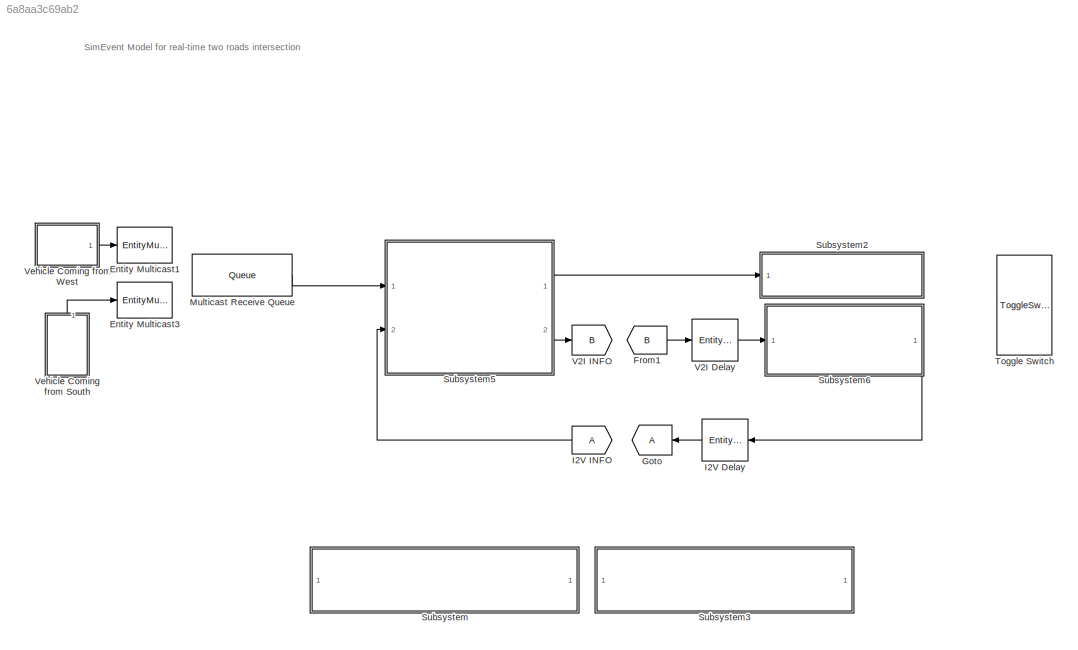
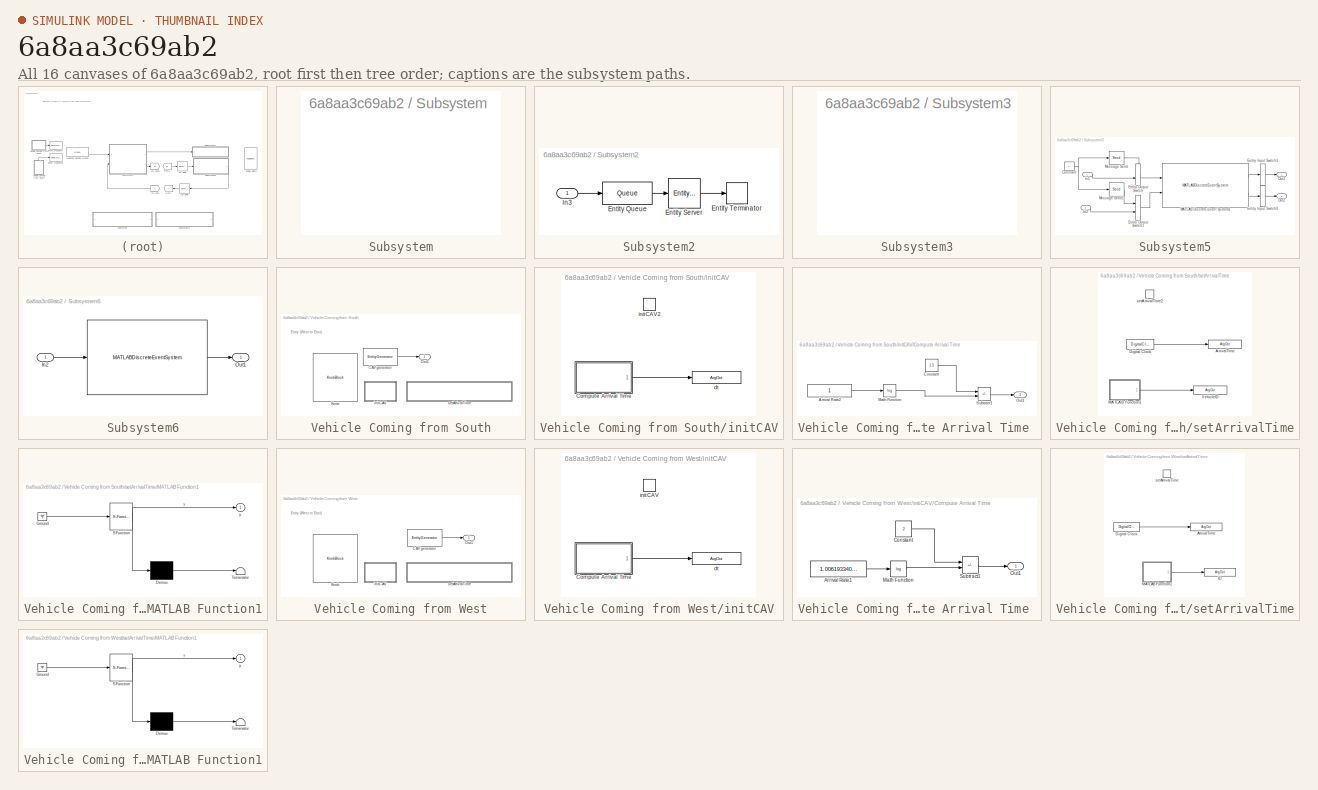
[diagram: thumbnail index - all 16 canvases of the model, root first then tree order]
MODEL slx_6a8aa3c69ab2
KIND model
CONFIG AbsTol = auto
CONFIG EnableMultiTasking = off
CONFIG FixedStep = 0.1
CONFIG MaxStep = auto
CONFIG MinStep = auto
CONFIG PreLoadFcn = init_func
CONFIG RelTol = 1e-3
CONFIG SampleTimeConstraint = Unconstrained
CONFIG SolverName = VariableStepAuto
CONFIG StartTime = 0.0
CONFIG StopTime = 120
BLOCK [EntityMulticast] Entity Multicast1
  InputPortMessageModes = m
  MulticastTag = CAV
BLOCK [EntityMulticast] Entity Multicast3
  InputPortMessageModes = m
  MulticastTag = CAV
BLOCK [From] From1
  GotoTag = B
BLOCK [Goto] Goto
  NameLocation = top
BLOCK [EntityServer] I2V Delay
  Capacity = Inf
  InputPortMap = u2
  InputPortMessageModes = m
  NameLocation = top
  OutputPortMap = o9
  OutputPortMessageModes = m
  Ports = [1, 1]
  ServiceTimeValue = 0
BLOCK [From] I2V INFO
  NameLocation = top
BLOCK [Queue] Multicast Receive Queue
  Capacity = 100
  EntityArrivalSource = Multicast
  MulticastTag = CAV
  OutputPortMap = o5
  OutputPortMessageModes = m
  Ports = [0, 1]
BLOCK [SubSystem] Subsystem
  OpenFcn = edit dynamics.m
  Ports = []
  RequestExecContextInheritance = off
BLOCK [SubSystem] Subsystem2
  Ports = [1]
  RequestExecContextInheritance = off
BLOCK [Queue] Subsystem2/Entity Queue
  InputPortMap = u0
  InputPortMessageModes = m
  OutputPortMap = o5
  OutputPortMessageModes = m
  Ports = [1, 1]
BLOCK [EntityServer] Subsystem2/Entity Server
  Capacity = Inf
  InputPortMap = u2
  InputPortMessageModes = m
  OutputPortMap = o9
  OutputPortMessageModes = m
  Ports = [1, 1]
  ServiceTimeAction = dt = 30 / entity.FinalSpeed;
  ServiceTimeSource = MATLAB action
BLOCK [EntityTerminator] Subsystem2/Entity Terminator
  InputPortMap = u0
  InputPortMessageModes = m
  Ports = [1]
BLOCK [Inport] Subsystem2/In3
BLOCK [SubSystem] Subsystem3
  OpenFcn = edit fuel_consumption.m
  Ports = []
  RequestExecContextInheritance = off
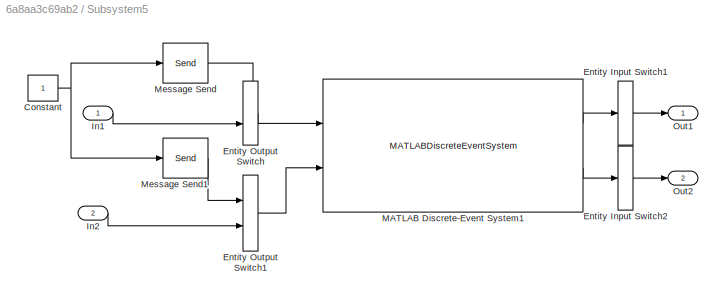
BLOCK [SubSystem] Subsystem5
  Ports = [2, 2]
  RequestExecContextInheritance = off
BLOCK [Constant] Subsystem5/Constant
  SampleTime = -1
BLOCK [EntityInputSwitch] Subsystem5/Entity Input Switch1
  InputPortMap = u1
  InputPortMessageModes = m
  NumberInputPorts = 1
  OutputPortMap = o0
  OutputPortMessageModes = m
  Ports = [1, 1]
  SwitchingCriterion = From control port
BLOCK [EntityInputSwitch] Subsystem5/Entity Input Switch2
  InputPortMap = u1
  InputPortMessageModes = m
  NumberInputPorts = 1
  OutputPortMap = o0
  OutputPortMessageModes = m
  Ports = [1, 1]
  SwitchingCriterion = From control port
BLOCK [EntityOutputSwitch] Subsystem5/Entity Output Switch
  InputPortMap = u0,u1
  InputPortMessageModes = m,m
  NumberOutputPorts = 1
  OutputPortMap = o0
  OutputPortMessageModes = m
  Ports = [2, 1]
  SwitchAttributeName = Attribute1
  SwitchingCriterion = From control port
BLOCK [EntityOutputSwitch] Subsystem5/Entity Output Switch1
  InputPortMap = u0,u1
  InputPortMessageModes = m,m
  NumberOutputPorts = 1
  OutputPortMap = o0
  OutputPortMessageModes = m
  Ports = [2, 1]
  SwitchAttributeName = Attribute1
  SwitchingCriterion = From control port
BLOCK [Inport] Subsystem5/In1
BLOCK [Inport] Subsystem5/In2
  Port = 2
BLOCK [MATLABDiscreteEventSystem] Subsystem5/MATLAB Discrete-Event System1
  Description = Coordinator
  InputPortMessageModes = m,m
  L = 400
  MaskDisplay = disp('OPTIMAL CONTROLLER');\nport_label('input',1,'IN');\nport_label('input',2,'INFO');\nport_label('output',1,'OUT');\nport_label('output',2,'INFO');
  MaskType = Controller
  OutputPortMessageModes = m,m
  Ports = [2, 2]
  SimulateUsing = Interpreted execution
  System = Controller
  capacity = 100
  step = 0.1
BLOCK [Send] Subsystem5/Message Send
  InputPortMap = u1
  OutputPortMessageModes = m
  Ports = [1, 1]
BLOCK [Send] Subsystem5/Message Send1
  InputPortMap = u1
  OutputPortMessageModes = m
  Ports = [1, 1]
BLOCK [Outport] Subsystem5/Out1
BLOCK [Outport] Subsystem5/Out2
  Port = 2
BLOCK [SubSystem] Subsystem6
  Ports = [1, 1]
  RequestExecContextInheritance = off
BLOCK [MATLABDiscreteEventSystem] Subsystem6/ 
  InputPortMessageModes = m
  MaskDisplay = disp('COORDINATOR');\nport_label('input',1,'IN');\nport_label('output',1,'OUT');
  MaskType = Coordinator
  OutputPortMessageModes = m
  Ports = [1, 1]
  SimulateUsing = Interpreted execution
  System = Coordinator
  capacity = 100
BLOCK [Inport] Subsystem6/In2
BLOCK [Outport] Subsystem6/Out1
BLOCK [ToggleSwitchBlock] Toggle Switch
  LabelPosition = Hide
BLOCK [EntityServer] V2I Delay
  Capacity = Inf
  InputPortMap = u2
  InputPortMessageModes = m
  OutputPortMap = o9
  OutputPortMessageModes = m
  Ports = [1, 1]
  ServiceTimeValue = 0.1
BLOCK [Goto] V2I INFO
  GotoTag = B
BLOCK [SubSystem] Vehicle Coming from South
  NameLocation = right
  Ports = [0, 1]
  RequestExecContextInheritance = off
BLOCK [EntityGenerator] Vehicle Coming from South/CAV generator 
  AttributeInitialValue = 0|1|1|1|1|1|1|1|[0 0 0 0]
  AttributeName = ID|Speed|ArrivalTime|FinalSpeed|FinalTime|Position|Destination|Lane|coe
  DialogController = slde.AttributeBlockDialog
  EntityType = Bus object
  EntityTypeName = CAV
  GenerateAction = entity.FinalSpeed = 30;\nentity.distance = 0;\n[entity.ArrivalTime,...\n    entity.ID] = setArrivalTime2();\n%entity.Speed = 9 + 3 * rand();\nentity.Speed = 20;\nentity.TravelTime = 0;\nentity.FuelConsumption = 0;\nentity.Lane = 2;\nentity.Position = 0;\nentity.coe = [0, 0, entity.Speed, ...\n    -entity.Speed * entity.ArrivalTime];\ndest = [1, 3, 4];\nidx = ceil(3 * rand()); \nentity.Destination = 3;%dest(idx)...<+46ch>
  GenerateEntityAtSimulationStart = off
  IntergenerationTimeAction = % dt = 2 * rand();\n% dt = initCAV2();\nmean = 2.7;\ndt = 2.8-mean*log(1-rand());\n%dt = 2.8;
  OutputPortMap = o3
  OutputPortMessageModes = m
  Ports = [0, 1]
  TimeSource = MATLAB action
BLOCK [KnobBlock] Vehicle Coming from South/Knob
  ScaleMax = 1
BLOCK [Outport] Vehicle Coming from South/Out1
BLOCK [SubSystem] Vehicle Coming from South/initCAV
  Ports = [0, 0, 0, 1]
  RequestExecContextInheritance = off
  TreatAsAtomicUnit = on
BLOCK [SubSystem] Vehicle Coming from South/initCAV/Compute Arrival Time 
  Ports = [0, 1]
  RequestExecContextInheritance = off
BLOCK [Constant] Vehicle Coming from South/initCAV/Compute Arrival Time /Arrival Rate2 
  SampleTime = -1
BLOCK [Constant] Vehicle Coming from South/initCAV/Compute Arrival Time /Constant
  SampleTime = Inf
  Value = 1.5
BLOCK [Math] Vehicle Coming from South/initCAV/Compute Arrival Time /Math Function
  Operator = log
  Ports = [1, 1]
  SignedPower = on
BLOCK [Outport] Vehicle Coming from South/initCAV/Compute Arrival Time /Out1
BLOCK [Sum] Vehicle Coming from South/initCAV/Compute Arrival Time /Subtract1
  IconShape = rectangular
  Inputs = +-
  Ports = [2, 1]
BLOCK [ArgOut] Vehicle Coming from South/initCAV/dt
  ArgumentName = dt
  DisableCoverage = on
BLOCK [TriggerPort] Vehicle Coming from South/initCAV/initCAV2
  FunctionName = initCAV2
  FunctionVisibility = scoped
  IsSimulinkFunction = on
  Ports = []
  StatesWhenEnabling = held
  TriggerType = function-call
  VariantControl = Variant
BLOCK [SubSystem] Vehicle Coming from South/setArrivalTime
  Ports = [0, 0, 0, 1]
  RequestExecContextInheritance = off
  TreatAsAtomicUnit = on
BLOCK [ArgOut] Vehicle Coming from South/setArrivalTime/ArrivalTime
  ArgumentName = ArrivalTime
  DisableCoverage = on
BLOCK [DigitalClock] Vehicle Coming from South/setArrivalTime/Digital Clock
  SampleTime = -1
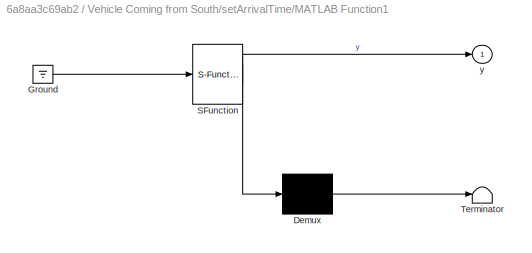
BLOCK [SubSystem] Vehicle Coming from South/setArrivalTime/MATLAB Function1
  ErrorFcn = Stateflow.Translate.translate
  PermitHierarchicalResolution = ExplicitOnly
  Ports = [0, 1]
  RequestExecContextInheritance = off
  SFBlockType = MATLAB Function
  TreatAsAtomicUnit = on
BLOCK [Demux] Vehicle Coming from South/setArrivalTime/MATLAB Function1/ Demux 
  Outputs = 1
  Ports = [1, 1]
BLOCK [Ground] Vehicle Coming from South/setArrivalTime/MATLAB Function1/ Ground 
BLOCK [S-Function] Vehicle Coming from South/setArrivalTime/MATLAB Function1/ SFunction 
  EnableBusSupport = on
  FunctionName = sf_sfun
  PortCounts = [1 2]
  Ports = [1, 2]
  SFcnIsStateOwnerBlock = off
  SFunctionDeploymentMode = off
  Tag = Stateflow S-Function 1
BLOCK [Terminator] Vehicle Coming from South/setArrivalTime/MATLAB Function1/ Terminator 
BLOCK [Outport] Vehicle Coming from South/setArrivalTime/MATLAB Function1/y
BLOCK [ArgOut] Vehicle Coming from South/setArrivalTime/VehicleID
  ArgumentName = VehicleID
  DisableCoverage = on
  Port = 2
BLOCK [TriggerPort] Vehicle Coming from South/setArrivalTime/setArrivalTime2
  FunctionName = setArrivalTime2
  FunctionVisibility = scoped
  IsSimulinkFunction = on
  Ports = []
  StatesWhenEnabling = held
  TriggerType = function-call
  VariantControl = Variant
BLOCK [SubSystem] Vehicle Coming from West
  Ports = [0, 1]
  RequestExecContextInheritance = off
BLOCK [EntityGenerator] Vehicle Coming from West/CAV generator 
  AttributeInitialValue = 0|1|1|1|1|0|1|1|1|[0 0 0 0]
  AttributeName = ID|Speed|ArrivalTime|FinalSpeed|FinalTime|Position|Lane|Destination|Acceleration|coe
  DialogController = slde.AttributeBlockDialog
  EntityType = Bus object
  EntityTypeName = CAV
  GenerateAction = entity.FinalSpeed = 30;\nentity.distance = 0;\n[entity.ArrivalTime,...\n    entity.ID] = setArrivalTime();\n%entity.Speed = 8 + 4 * rand();\nentity.Speed = 20;\nentity.Lane = 1;\nentity.Position = 0;\nentity.TravelTime = 0;\nentity.FuelConsumption = 0;\nentity.coe = [0, 0, entity.Speed,...\n    - entity.Speed * entity.ArrivalTime];\ndest = [2, 3, 4];\nidx = ceil(3 * rand()); \nentity.Destination = 3;%dest(idx);...<+45ch>
  IntergenerationTimeAction = %dt = initCAV();\nmean = 0.8;\ndt = 1.8 - mean*log(1-rand());\n%dt = 2.8;
  OutputPortMap = o3
  OutputPortMessageModes = m
  Ports = [0, 1]
  TimeSource = MATLAB action
BLOCK [KnobBlock] Vehicle Coming from West/Knob
  ScaleMax = 3
BLOCK [Outport] Vehicle Coming from West/Out1
BLOCK [SubSystem] Vehicle Coming from West/initCAV
  Ports = [0, 0, 0, 1]
  RequestExecContextInheritance = off
  TreatAsAtomicUnit = on
BLOCK [SubSystem] Vehicle Coming from West/initCAV/Compute Arrival Time 
  Ports = [0, 1]
  RequestExecContextInheritance = off
BLOCK [Constant] Vehicle Coming from West/initCAV/Compute Arrival Time /Arrival Rate1 
  SampleTime = -1
  Value = 1.006193340207342
BLOCK [Constant] Vehicle Coming from West/initCAV/Compute Arrival Time /Constant
  SampleTime = Inf
  Value = 2
BLOCK [Math] Vehicle Coming from West/initCAV/Compute Arrival Time /Math Function
  Operator = log
  Ports = [1, 1]
  SignedPower = on
BLOCK [Outport] Vehicle Coming from West/initCAV/Compute Arrival Time /Out1
BLOCK [Sum] Vehicle Coming from West/initCAV/Compute Arrival Time /Subtract1
  IconShape = rectangular
  Inputs = +-
  Ports = [2, 1]
BLOCK [ArgOut] Vehicle Coming from West/initCAV/dt
  ArgumentName = dt
  DisableCoverage = on
BLOCK [TriggerPort] Vehicle Coming from West/initCAV/initCAV
  FunctionName = initCAV
  FunctionVisibility = scoped
  IsSimulinkFunction = on
  Ports = []
  StatesWhenEnabling = held
  TriggerType = function-call
  VariantControl = Variant
BLOCK [SubSystem] Vehicle Coming from West/setArrivalTime
  Ports = [0, 0, 0, 1]
  RequestExecContextInheritance = off
  TreatAsAtomicUnit = on
BLOCK [ArgOut] Vehicle Coming from West/setArrivalTime/ArrivalTime
  ArgumentName = ArrivalTime
  DisableCoverage = on
BLOCK [DigitalClock] Vehicle Coming from West/setArrivalTime/Digital Clock
  SampleTime = -1
BLOCK [ArgOut] Vehicle Coming from West/setArrivalTime/ID
  ArgumentName = ID
  DisableCoverage = on
  Port = 2
BLOCK [SubSystem] Vehicle Coming from West/setArrivalTime/MATLAB Function1
  ErrorFcn = Stateflow.Translate.translate
  PermitHierarchicalResolution = ExplicitOnly
  Ports = [0, 1]
  RequestExecContextInheritance = off
  SFBlockType = MATLAB Function
  TreatAsAtomicUnit = on
BLOCK [Demux] Vehicle Coming from West/setArrivalTime/MATLAB Function1/ Demux 
  Outputs = 1
  Ports = [1, 1]
BLOCK [Ground] Vehicle Coming from West/setArrivalTime/MATLAB Function1/ Ground 
BLOCK [S-Function] Vehicle Coming from West/setArrivalTime/MATLAB Function1/ SFunction 
  EnableBusSupport = on
  FunctionName = sf_sfun
  PortCounts = [1 2]
  Ports = [1, 2]
  SFcnIsStateOwnerBlock = off
  SFunctionDeploymentMode = off
  Tag = Stateflow S-Function 4
BLOCK [Terminator] Vehicle Coming from West/setArrivalTime/MATLAB Function1/ Terminator 
BLOCK [Outport] Vehicle Coming from West/setArrivalTime/MATLAB Function1/y
BLOCK [TriggerPort] Vehicle Coming from West/setArrivalTime/setArrivalTime
  FunctionName = setArrivalTime
  FunctionVisibility = scoped
  IsSimulinkFunction = on
  Ports = []
  StatesWhenEnabling = held
  TriggerType = function-call
  VariantControl = Variant
ANNOTATION (root): SimEvent Model for real-time two roads intersection
ANNOTATION Vehicle Coming from South: Entry (West to East)
ANNOTATION Vehicle Coming from West: Entry (West to East)
LINE From1:1 -> V2I Delay:1
LINE I2V Delay:1 -> Goto:1
LINE I2V INFO:1 -> Subsystem5:2
LINE Multicast Receive Queue:1 -> Subsystem5:1
LINE Subsystem2/Entity Queue:1 -> Subsystem2/Entity Server:1
LINE Subsystem2/Entity Server:1 -> Subsystem2/Entity Terminator:1
LINE Subsystem2/In3:1 -> Subsystem2/Entity Queue:1
NET Subsystem5/Constant:1 -> Subsystem5/Message Send1:1, Subsystem5/Message Send:1
LINE Subsystem5/Entity Input Switch1:1 -> Subsystem5/Out1:1
LINE Subsystem5/Entity Input Switch2:1 -> Subsystem5/Out2:1
LINE Subsystem5/Entity Output Switch1:1 -> Subsystem5/MATLAB Discrete-Event System1:2
LINE Subsystem5/Entity Output Switch:1 -> Subsystem5/MATLAB Discrete-Event System1:1
LINE Subsystem5/In1:1 -> Subsystem5/Entity Output Switch:2
LINE Subsystem5/In2:1 -> Subsystem5/Entity Output Switch1:2
LINE Subsystem5/MATLAB Discrete-Event System1:1 -> Subsystem5/Entity Input Switch1:1
LINE Subsystem5/MATLAB Discrete-Event System1:2 -> Subsystem5/Entity Input Switch2:1
LINE Subsystem5/Message Send1:1 -> Subsystem5/Entity Output Switch1:1
LINE Subsystem5/Message Send:1 -> Subsystem5/Entity Output Switch:1
LINE Subsystem5:1 -> Subsystem2:1
LINE Subsystem5:2 -> V2I INFO:1
LINE Subsystem6/ :1 -> Subsystem6/Out1:1
LINE Subsystem6/In2:1 -> Subsystem6/ :1
LINE Subsystem6:1 -> I2V Delay:1
LINE V2I Delay:1 -> Subsystem6:1
LINE Vehicle Coming from South/CAV generator :1 -> Vehicle Coming from South/Out1:1
LINE Vehicle Coming from South/initCAV/Compute Arrival Time /Arrival Rate2 :1 -> Vehicle Coming from South/initCAV/Compute Arrival Time /Math Function:1
LINE Vehicle Coming from South/initCAV/Compute Arrival Time /Constant:1 -> Vehicle Coming from South/initCAV/Compute Arrival Time /Subtract1:1
LINE Vehicle Coming from South/initCAV/Compute Arrival Time /Math Function:1 -> Vehicle Coming from South/initCAV/Compute Arrival Time /Subtract1:2
LINE Vehicle Coming from South/initCAV/Compute Arrival Time /Subtract1:1 -> Vehicle Coming from South/initCAV/Compute Arrival Time /Out1:1
LINE Vehicle Coming from South/initCAV/Compute Arrival Time :1 -> Vehicle Coming from South/initCAV/dt:1
LINE Vehicle Coming from South/setArrivalTime/Digital Clock:1 -> Vehicle Coming from South/setArrivalTime/ArrivalTime:1
LINE Vehicle Coming from South/setArrivalTime/MATLAB Function1:1 -> Vehicle Coming from South/setArrivalTime/VehicleID:1
LINE Vehicle Coming from South:1 -> Entity Multicast3:1
LINE Vehicle Coming from West/CAV generator :1 -> Vehicle Coming from West/Out1:1
LINE Vehicle Coming from West/initCAV/Compute Arrival Time /Arrival Rate1 :1 -> Vehicle Coming from West/initCAV/Compute Arrival Time /Math Function:1
LINE Vehicle Coming from West/initCAV/Compute Arrival Time /Constant:1 -> Vehicle Coming from West/initCAV/Compute Arrival Time /Subtract1:1
LINE Vehicle Coming from West/initCAV/Compute Arrival Time /Math Function:1 -> Vehicle Coming from West/initCAV/Compute Arrival Time /Subtract1:2
LINE Vehicle Coming from West/initCAV/Compute Arrival Time /Subtract1:1 -> Vehicle Coming from West/initCAV/Compute Arrival Time /Out1:1
LINE Vehicle Coming from West/initCAV/Compute Arrival Time :1 -> Vehicle Coming from West/initCAV/dt:1
LINE Vehicle Coming from West/setArrivalTime/Digital Clock:1 -> Vehicle Coming from West/setArrivalTime/ArrivalTime:1
LINE Vehicle Coming from West/setArrivalTime/MATLAB Function1:1 -> Vehicle Coming from West/setArrivalTime/ID:1
LINE Vehicle Coming from West:1 -> Entity Multicast1:1
note: NET lines group one-source signal fan-out (src -> all destinations, sorted); 1:1 wires keep LINE
CHART Vehicle Coming from South/setArrivalTime/MATLAB Function1 states=1 transitions=1
  STATE_LABEL 'eML_blk_kernel()'
  STATE_LABEL 'SCRIPT:\nfunction y = getID\nglobal FF\n\nFF = FF + 1;\ny = FF;'
CHART Vehicle Coming from West/setArrivalTime/MATLAB Function1 states=1 transitions=1
  STATE_LABEL 'eML_blk_kernel()'
  STATE_LABEL 'SCRIPT:\nfunction y = getID()\nglobal FF\n\nFF = FF + 1;\ny = FF;'
CHART  states=0 transitions=0
CHART  states=0 transitions=0
